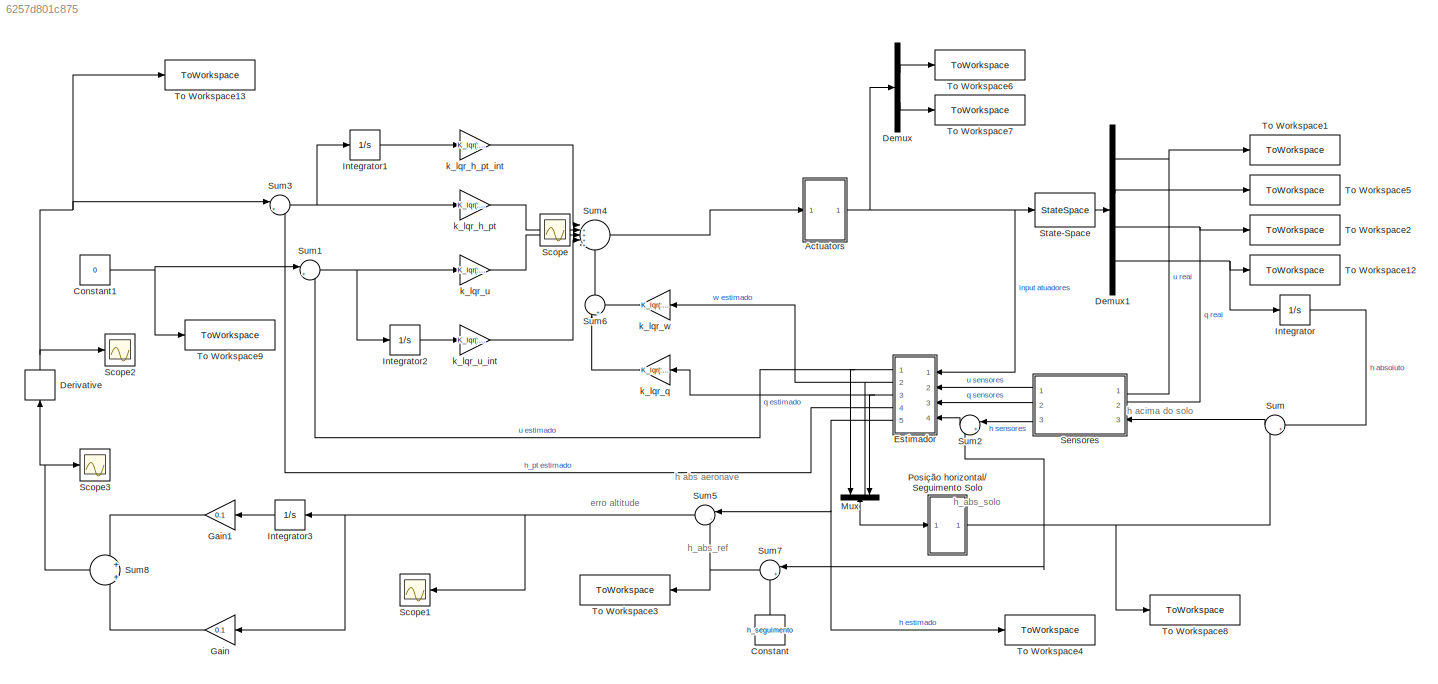
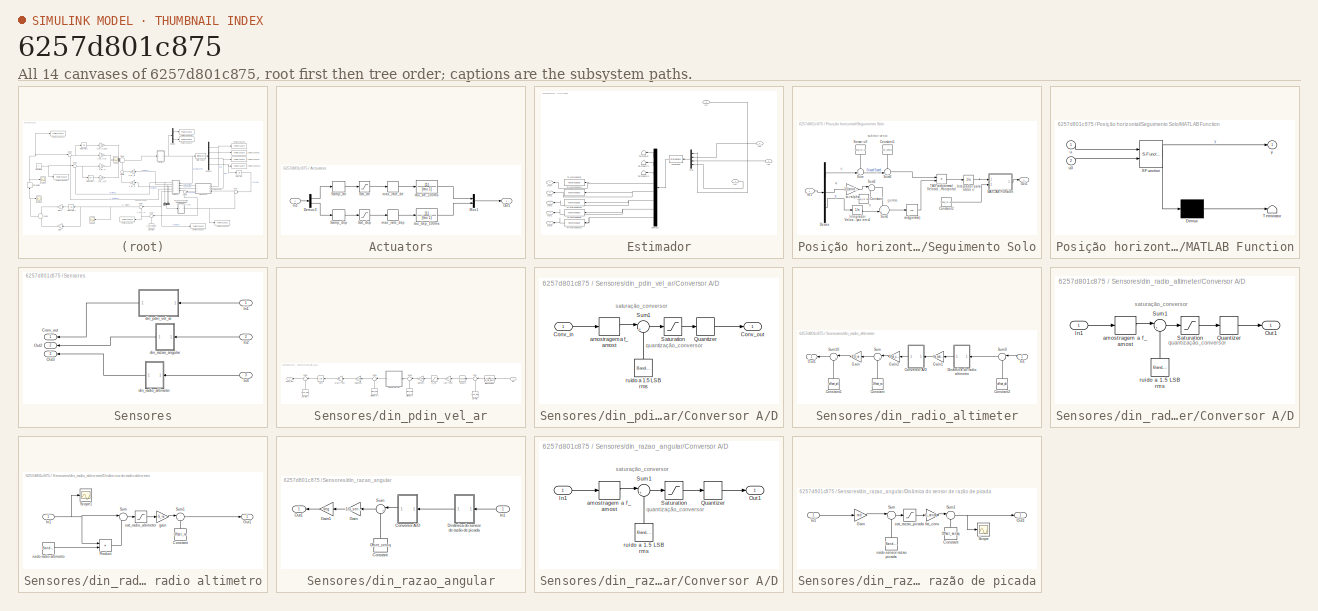
[diagram: thumbnail index - all 14 canvases of the model, root first then tree order]
MODEL slx_6257d801c875
KIND model
CONFIG AbsTol = auto
CONFIG EnableMultiTasking = off
CONFIG FixedStep = auto
CONFIG MaxStep = auto
CONFIG MinStep = auto
CONFIG RelTol = 1e-3
CONFIG SampleTimeConstraint = Unconstrained
CONFIG SolverName = VariableStepAuto
CONFIG StartTime = 0.0
CONFIG StopTime = 100
BLOCK [SubSystem] Actuators
  Ports = [1, 1]
  RequestExecContextInheritance = off
BLOCK [RateLimiter] Actuators/ max_rate_de
  FallingSlewLimit = -vel_max_at*deg
  RisingSlewLimit = vel_max_at*deg
  SampleTimeMode = inherited
BLOCK [RateLimiter] Actuators/ max_rate_dsp
  FallingSlewLimit = -vel_max_at*deg
  RisingSlewLimit = vel_max_at*deg
  SampleTimeMode = inherited
BLOCK [Demux] Actuators/Demux3
  Outputs = 2
  Ports = [1, 2]
BLOCK [Inport] Actuators/In1
BLOCK [Mux] Actuators/Mux1
  DisplayOption = bar
  Inputs = 2
  Ports = [2, 1]
BLOCK [Outport] Actuators/Out1
BLOCK [ZeroOrderHold] Actuators/Samp_de
  SampleTime = 1/f_amost
BLOCK [ZeroOrderHold] Actuators/Samp_dsp
  SampleTime = 1/f_amost
BLOCK [Saturate] Actuators/Sat_de
  LowerLimit = max_deflec.demin
  UpperLimit = max_deflec.demax
BLOCK [Saturate] Actuators/Sat_dsp
  LowerLimit = 0
  UpperLimit = max_deflec.spmax
BLOCK [TransferFcn] Actuators/tau_de_100ms
  Denominator = [tau 1]
BLOCK [TransferFcn] Actuators/tau_dsp_100ms
  Denominator = [tau 1]
BLOCK [Constant] Constant
  NameLocation = right
  Value = h_seguimento
BLOCK [Constant] Constant1
  Value = 0
BLOCK [Demux] Demux
  Outputs = 2
  Ports = [1, 2]
BLOCK [Demux] Demux1
  Ports = [1, 4]
BLOCK [Derivative] Derivative
  NameLocation = right
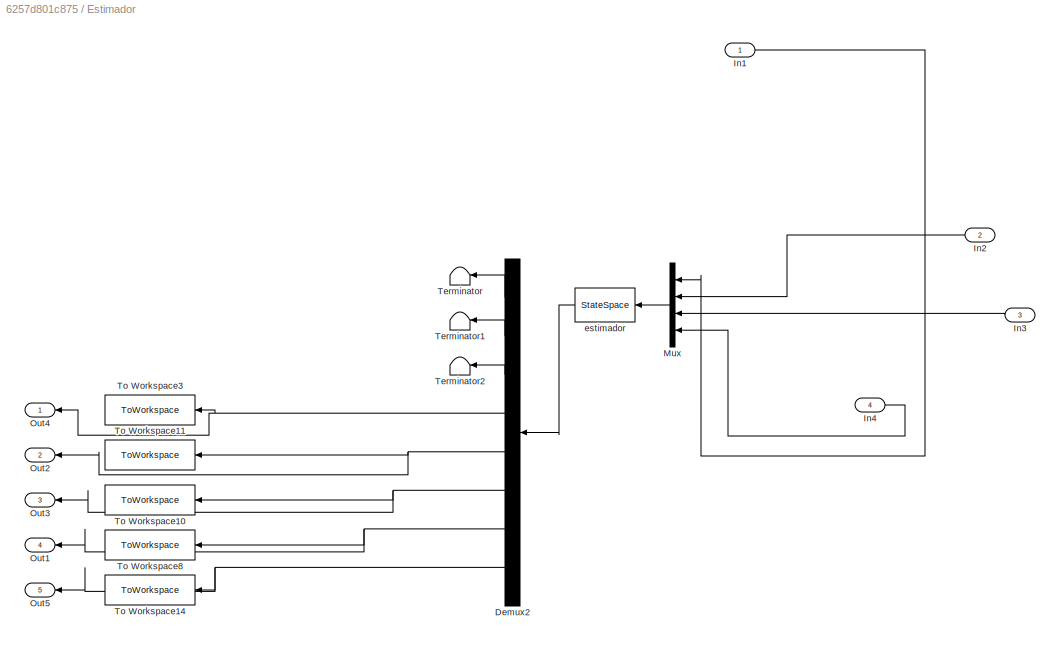
BLOCK [SubSystem] Estimador
  NameLocation = top
  Ports = [4, 5]
  RequestExecContextInheritance = off
BLOCK [Demux] Estimador/Demux2
  NameLocation = top
  Outputs = 8
  Ports = [1, 8]
BLOCK [Inport] Estimador/In1
BLOCK [Inport] Estimador/In2
  Port = 2
BLOCK [Inport] Estimador/In3
  Port = 3
BLOCK [Inport] Estimador/In4
  Port = 4
BLOCK [Mux] Estimador/Mux
  DisplayOption = bar
  NameLocation = top
  Ports = [4, 1]
BLOCK [Outport] Estimador/Out1
  NameLocation = top
  Port = 4
BLOCK [Outport] Estimador/Out2
  Port = 2
BLOCK [Outport] Estimador/Out3
  Port = 3
BLOCK [Outport] Estimador/Out4
  NameLocation = top
BLOCK [Outport] Estimador/Out5
  NameLocation = top
  Port = 5
BLOCK [Terminator] Estimador/Terminator
  NameLocation = top
BLOCK [Terminator] Estimador/Terminator1
  NameLocation = top
BLOCK [Terminator] Estimador/Terminator2
  NameLocation = top
BLOCK [ToWorkspace] Estimador/To Workspace10
  FixptAsFi = on
  MaxDataPoints = inf
  NameLocation = top
  Ports = [1]
  SampleTime = -1
  VariableName = q_e
BLOCK [ToWorkspace] Estimador/To Workspace11
  FixptAsFi = on
  MaxDataPoints = inf
  NameLocation = top
  Ports = [1]
  SampleTime = -1
  VariableName = w_e
BLOCK [ToWorkspace] Estimador/To Workspace14
  FixptAsFi = on
  MaxDataPoints = inf
  NameLocation = top
  Ports = [1]
  SampleTime = -1
  VariableName = h_e
BLOCK [ToWorkspace] Estimador/To Workspace3
  FixptAsFi = on
  MaxDataPoints = inf
  NameLocation = top
  Ports = [1]
  SampleTime = -1
  VariableName = u_e
BLOCK [ToWorkspace] Estimador/To Workspace8
  FixptAsFi = on
  MaxDataPoints = inf
  NameLocation = top
  Ports = [1]
  SampleTime = -1
  VariableName = h_pt_e
BLOCK [StateSpace] Estimador/estimador
  A = ae
  B = be
  C = ce
  D = de
  InitialCondition = x0_e
  NameLocation = top
  Ports = [1, 1]
BLOCK [Gain] Gain
  Gain = 0.1
  NameLocation = top
BLOCK [Gain] Gain1
  Gain = 0.1
  NameLocation = top
BLOCK [Integrator] Integrator
  InitialCondition = cond_ini.h0+h_solo_0
  Ports = [1, 1]
BLOCK [Integrator] Integrator1
  Ports = [1, 1]
BLOCK [Integrator] Integrator2
  Ports = [1, 1]
BLOCK [Integrator] Integrator3
  NameLocation = top
  Ports = [1, 1]
BLOCK [Mux] Mux
  DisplayOption = bar
  Inputs = 3
  NameLocation = left
  Ports = [3, 1]
BLOCK [SubSystem] Posição horizontal//Seguimento Solo
  NameLocation = top
  Ports = [1, 1]
  RequestExecContextInheritance = off
BLOCK [Constant] Posição horizontal//Seguimento Solo/Constant
  Value = cond_ini.aa0
BLOCK [Constant] Posição horizontal//Seguimento Solo/Constant1
  NameLocation = left
  Value = vel_vento
BLOCK [Constant] Posição horizontal//Seguimento Solo/Constant2
  Value = cond_ini.u0
BLOCK [Demux] Posição horizontal//Seguimento Solo/Demux
  Outputs = 3
  Ports = [1, 3]
BLOCK [Inport] Posição horizontal//Seguimento Solo/In1
BLOCK [Integrator] Posição horizontal//Seguimento Solo/Integrador Velocidade para posiçao em x1
  InitialCondition = cond_ini.tt0
  Ports = [1, 1]
BLOCK [Integrator] Posição horizontal//Seguimento Solo/Integrador para obter x
  Ports = [1, 1]
BLOCK [SubSystem] Posição horizontal//Seguimento Solo/MATLAB Function
  ErrorFcn = Stateflow.Translate.translate
  PermitHierarchicalResolution = ExplicitOnly
  Ports = [2, 1]
  RequestExecContextInheritance = off
  SFBlockType = MATLAB Function
  TreatAsAtomicUnit = on
BLOCK [Demux] Posição horizontal//Seguimento Solo/MATLAB Function/ Demux 
  Outputs = 1
  Ports = [1, 1]
BLOCK [S-Function] Posição horizontal//Seguimento Solo/MATLAB Function/ SFunction 
  EnableBusSupport = on
  FunctionName = sf_sfun
  PortCounts = [2 2]
  Ports = [2, 2]
  SFcnIsStateOwnerBlock = off
  SFunctionDeploymentMode = off
  Tag = Stateflow S-Function 2
BLOCK [Terminator] Posição horizontal//Seguimento Solo/MATLAB Function/ Terminator 
BLOCK [Inport] Posição horizontal//Seguimento Solo/MATLAB Function/u
BLOCK [Inport] Posição horizontal//Seguimento Solo/MATLAB Function/u0
  Port = 2
BLOCK [Outport] Posição horizontal//Seguimento Solo/MATLAB Function/y
  VectorParamsAs1DForOutWhenUnconnected = off
BLOCK [Outport] Posição horizontal//Seguimento Solo/Out1
  VectorParamsAs1DForOutWhenUnconnected = off
BLOCK [Constant] Posição horizontal//Seguimento Solo/Somar u0
  NameLocation = left
  Value = cond_ini.u0
BLOCK [Sum] Posição horizontal//Seguimento Solo/Sum
  Inputs = ++|
  Ports = [2, 1]
BLOCK [Sum] Posição horizontal//Seguimento Solo/Sum1
  Inputs = -+|
  Ports = [2, 1]
BLOCK [Sum] Posição horizontal//Seguimento Solo/Sum2
  Inputs = |++
  Ports = [2, 1]
BLOCK [Sum] Posição horizontal//Seguimento Solo/Sum3
  Inputs = -+|
  Ports = [2, 1]
BLOCK [Product] Posição horizontal//Seguimento Solo/TAS*cos(gamma) Velocidade Horizontal
  Ports = [2, 1]
BLOCK [Trigonometry] Posição horizontal//Seguimento Solo/cos(gamma)
  Operator = cos
  Ports = [1, 1]
BLOCK [Gain] Posição horizontal//Seguimento Solo/w->alpha
  Gain = 1/(cond_ini.u0)
BLOCK [Scope] Scope
  Floating = off
  IOType = viewer
  NumInputPorts = 1
  Ports = []
  ScopeSpecificationString = Simulink.scopes.TimeScopeBlockCfg('CurrentConfiguration', extmgr.ConfigurationSet(extmgr.Configuration('Core','General UI',true),extmgr.Configuration('Core','Source UI',true),extmgr.Configuration('Sources','WiredSimulink',true),extmgr.Configuration('Visuals','Time Domain',true,'SerializedDisplays',{struct('MinYLimReal','-38.55863','MaxYLimReal','13.00209','YLabelReal','','MinYLimMag','0.00000','Ma...<+1363ch>
BLOCK [Scope] Scope1
  Floating = off
  NameLocation = top
  NumInputPorts = 1
  Ports = [1]
  ScopeSpecificationString = Simulink.scopes.TimeScopeBlockCfg('CurrentConfiguration', extmgr.ConfigurationSet(extmgr.Configuration('Core','General UI',true),extmgr.Configuration('Core','Source UI',true),extmgr.Configuration('Sources','WiredSimulink',true,'DataLoggingVariableName','ScopeData1'),extmgr.Configuration('Visuals','Time Domain',true,'SerializedDisplays',{struct('MinYLimReal','-67.59765','MaxYLimReal','126.267','YLa...<+1394ch>
BLOCK [Scope] Scope2
  Floating = off
  NumInputPorts = 1
  Ports = [1]
  ScopeSpecificationString = Simulink.scopes.TimeScopeBlockCfg('CurrentConfiguration', extmgr.ConfigurationSet(extmgr.Configuration('Core','General UI',true),extmgr.Configuration('Core','Source UI',true),extmgr.Configuration('Sources','WiredSimulink',true,'DataLoggingVariableName','ScopeData1'),extmgr.Configuration('Visuals','Time Domain',true),extmgr.Configuration('Tools','Plot Navigation',true),extmgr.Configuration('Tools',...<+40ch>
BLOCK [Scope] Scope3
  Floating = off
  NumInputPorts = 1
  Ports = [1]
  ScopeSpecificationString = Simulink.scopes.TimeScopeBlockCfg('CurrentConfiguration', extmgr.ConfigurationSet(extmgr.Configuration('Core','General UI',true),extmgr.Configuration('Core','Source UI',true),extmgr.Configuration('Sources','WiredSimulink',true,'DataLoggingVariableName','ScopeData2'),extmgr.Configuration('Visuals','Time Domain',true),extmgr.Configuration('Tools','Plot Navigation',true),extmgr.Configuration('Tools',...<+40ch>
BLOCK [SubSystem] Sensores
  NameLocation = top
  Ports = [3, 3]
  RequestExecContextInheritance = off
BLOCK [Outport] Sensores/Conv_out
  NameLocation = left
BLOCK [Inport] Sensores/In1
  NameLocation = top
BLOCK [Inport] Sensores/In2
  NameLocation = top
  Port = 2
BLOCK [Inport] Sensores/In3
  NameLocation = top
  Port = 3
BLOCK [Outport] Sensores/Out2
  Port = 2
BLOCK [Outport] Sensores/Out3
  Port = 3
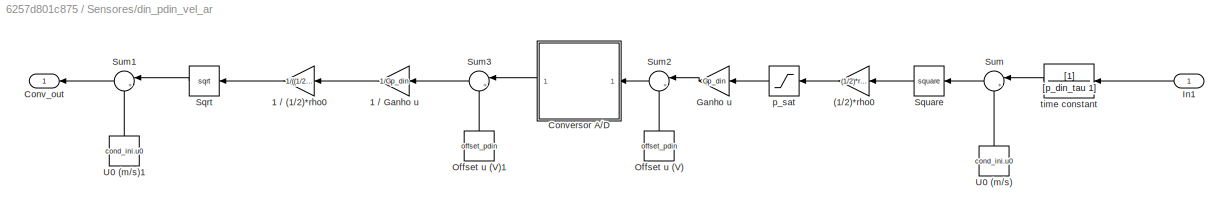
BLOCK [SubSystem] Sensores/din_pdin_vel_ar
  NameLocation = top
  Ports = [1, 1]
  RequestExecContextInheritance = off
BLOCK [TransferFcn] Sensores/din_pdin_vel_ar/ time constant
  Denominator = [p_din_tau 1]
  NameLocation = top
BLOCK [Gain] Sensores/din_pdin_vel_ar/(1//2)*rho0
  Gain = (1/2)*rho0
  NameLocation = top
BLOCK [Gain] Sensores/din_pdin_vel_ar/1 // (1//2)*rho0
  Gain = 1/((1/2)*rho0)
  NameLocation = top
BLOCK [Gain] Sensores/din_pdin_vel_ar/1 // Ganho u
  Gain = 1/Gp_din
  NameLocation = top
BLOCK [Outport] Sensores/din_pdin_vel_ar/Conv_out
  NameLocation = top
BLOCK [SubSystem] Sensores/din_pdin_vel_ar/Conversor A//D
  NameLocation = top
  Ports = [1, 1]
  RequestExecContextInheritance = off
BLOCK [Inport] Sensores/din_pdin_vel_ar/Conversor A//D/Conv_in
BLOCK [Outport] Sensores/din_pdin_vel_ar/Conversor A//D/Conv_out
BLOCK [Quantizer] Sensores/din_pdin_vel_ar/Conversor A//D/Quantizer
  QuantizationInterval = fat_quant
BLOCK [Saturate] Sensores/din_pdin_vel_ar/Conversor A//D/Saturation
  LowerLimit = conv_min
  UpperLimit = conv_max
BLOCK [Sum] Sensores/din_pdin_vel_ar/Conversor A//D/Sum1
  Inputs = |++
  Ports = [2, 1]
BLOCK [ZeroOrderHold] Sensores/din_pdin_vel_ar/Conversor A//D/amostragem a f_amost
  SampleTime = 1/f_amost
BLOCK [Reference] Sensores/din_pdin_vel_ar/Conversor A//D/ruído a 1.5 LSB rms  REF=simulink/Sources/Band-Limited
White Noise
  NameLocation = right
  Ports = [0, 1]
  SourceBlock = simulink/Sources/Band-Limited\nWhite Noise
  SourceProductBaseCode = SL
  SourceType = Band-Limited White Noise.
BLOCK [Gain] Sensores/din_pdin_vel_ar/Ganho u
  Gain = Gp_din
  NameLocation = top
BLOCK [Inport] Sensores/din_pdin_vel_ar/In1
  NameLocation = top
BLOCK [Constant] Sensores/din_pdin_vel_ar/Offset u (V)
  NameLocation = right
  Value = offset_pdin
BLOCK [Constant] Sensores/din_pdin_vel_ar/Offset u (V)1
  NameLocation = right
  Value = offset_pdin
BLOCK [Sqrt] Sensores/din_pdin_vel_ar/Sqrt
  NameLocation = top
BLOCK [Math] Sensores/din_pdin_vel_ar/Square
  NameLocation = top
  Operator = square
  Ports = [1, 1]
  SignedPower = on
BLOCK [Sum] Sensores/din_pdin_vel_ar/Sum
  Inputs = |++
  NameLocation = top
  Ports = [2, 1]
BLOCK [Sum] Sensores/din_pdin_vel_ar/Sum1
  Inputs = |+-
  NameLocation = top
  Ports = [2, 1]
BLOCK [Sum] Sensores/din_pdin_vel_ar/Sum2
  Inputs = |++
  NameLocation = top
  Ports = [2, 1]
BLOCK [Sum] Sensores/din_pdin_vel_ar/Sum3
  Inputs = |+-
  NameLocation = top
  Ports = [2, 1]
BLOCK [Constant] Sensores/din_pdin_vel_ar/U0 (m//s)
  NameLocation = right
  Value = cond_ini.u0
BLOCK [Constant] Sensores/din_pdin_vel_ar/U0 (m//s)1
  NameLocation = right
  Value = cond_ini.u0
BLOCK [Saturate] Sensores/din_pdin_vel_ar/p_sat
  LowerLimit = pdin_min
  NameLocation = top
  UpperLimit = pdin_max
BLOCK [SubSystem] Sensores/din_radio_altimeter
  Ports = [1, 1]
  RequestExecContextInheritance = off
BLOCK [Constant] Sensores/din_radio_altimeter/Constant
  NameLocation = right
  Value = Offset_ra
BLOCK [Constant] Sensores/din_radio_altimeter/Constant1
  NameLocation = right
  Value = offset_alt
BLOCK [Constant] Sensores/din_radio_altimeter/Constant2
  NameLocation = right
  Value = offset_alt
BLOCK [SubSystem] Sensores/din_radio_altimeter/Conversor A//D
  NameLocation = top
  Ports = [1, 1]
  RequestExecContextInheritance = off
BLOCK [Inport] Sensores/din_radio_altimeter/Conversor A//D/In1
BLOCK [Outport] Sensores/din_radio_altimeter/Conversor A//D/Out1
BLOCK [Quantizer] Sensores/din_radio_altimeter/Conversor A//D/Quantizer
  QuantizationInterval = fat_quant
BLOCK [Saturate] Sensores/din_radio_altimeter/Conversor A//D/Saturation
  LowerLimit = conv_min
  UpperLimit = conv_max
BLOCK [Sum] Sensores/din_radio_altimeter/Conversor A//D/Sum1
  Inputs = |++
  Ports = [2, 1]
BLOCK [ZeroOrderHold] Sensores/din_radio_altimeter/Conversor A//D/amostragem a f_amost
  SampleTime = 1/f_amost
BLOCK [Reference] Sensores/din_radio_altimeter/Conversor A//D/ruído a 1.5 LSB rms  REF=simulink/Sources/Band-Limited
White Noise
  NameLocation = right
  Ports = [0, 1]
  SourceBlock = simulink/Sources/Band-Limited\nWhite Noise
  SourceProductBaseCode = SL
  SourceType = Band-Limited White Noise.
BLOCK [SubSystem] Sensores/din_radio_altimeter/Dinâmica do radio altimetro
  Ports = [1, 1]
  RequestExecContextInheritance = off
BLOCK [Constant] Sensores/din_radio_altimeter/Dinâmica do radio altimetro/Constant
  NameLocation = right
  Value = Offset_ra
BLOCK [Inport] Sensores/din_radio_altimeter/Dinâmica do radio altimetro/In1
BLOCK [Outport] Sensores/din_radio_altimeter/Dinâmica do radio altimetro/Out1
BLOCK [Product] Sensores/din_radio_altimeter/Dinâmica do radio altimetro/Product
  Ports = [2, 1]
BLOCK [Scope] Sensores/din_radio_altimeter/Dinâmica do radio altimetro/Scope1
  Floating = off
  NumInputPorts = 1
  Ports = [1]
  ScopeSpecificationString = Simulink.scopes.TimeScopeBlockCfg('CurrentConfiguration', extmgr.ConfigurationSet(extmgr.Configuration('Core','General UI',true),extmgr.Configuration('Core','Source UI',true),extmgr.Configuration('Sources','WiredSimulink',true,'DataLoggingVariableName','ScopeData6'),extmgr.Configuration('Visuals','Time Domain',true,'SerializedDisplays',{struct('MinYLimReal','112.81721','MaxYLimReal','209.79696','Y...<+1376ch>
BLOCK [Sum] Sensores/din_radio_altimeter/Dinâmica do radio altimetro/Sum
  Inputs = |++
  Ports = [2, 1]
BLOCK [Sum] Sensores/din_radio_altimeter/Dinâmica do radio altimetro/Sum1
  Inputs = |++
  Ports = [2, 1]
BLOCK [Gain] Sensores/din_radio_altimeter/Dinâmica do radio altimetro/gain
  Gain = G_ra
BLOCK [Reference] Sensores/din_radio_altimeter/Dinâmica do radio altimetro/ruido radio altimetro  REF=simulink/Sources/Band-Limited
White Noise
  Ports = [0, 1]
  SourceBlock = simulink/Sources/Band-Limited\nWhite Noise
  SourceProductBaseCode = SL
  SourceType = Band-Limited White Noise.
BLOCK [Saturate] Sensores/din_radio_altimeter/Dinâmica do radio altimetro/sat_radio_altimeter
  LowerLimit = h_ra_min
  NameLocation = top
  UpperLimit = h_ra_max
BLOCK [Gain] Sensores/din_radio_altimeter/Gain
  Gain = 1/G_ra
  NameLocation = top
BLOCK [Gain] Sensores/din_radio_altimeter/Gain1
  Gain = fat_conv_ra
  NameLocation = top
BLOCK [Gain] Sensores/din_radio_altimeter/Gain2
  Gain = 1/fat_conv_ra
  NameLocation = top
BLOCK [Inport] Sensores/din_radio_altimeter/In1
  NameLocation = top
BLOCK [Outport] Sensores/din_radio_altimeter/Out1
BLOCK [Sum] Sensores/din_radio_altimeter/Sum
  Inputs = |+-
  NameLocation = top
  Ports = [2, 1]
BLOCK [Sum] Sensores/din_radio_altimeter/Sum10
  Inputs = |+-
  NameLocation = top
  Ports = [2, 1]
BLOCK [Sum] Sensores/din_radio_altimeter/Sum9
  Inputs = |++
  NameLocation = top
  Ports = [2, 1]
BLOCK [SubSystem] Sensores/din_razao_angular
  Ports = [1, 1]
  RequestExecContextInheritance = off
BLOCK [Constant] Sensores/din_razao_angular/Constant
  NameLocation = right
  Value = Offset_sensq
BLOCK [SubSystem] Sensores/din_razao_angular/Conversor A//D
  NameLocation = top
  Ports = [1, 1]
  RequestExecContextInheritance = off
BLOCK [Inport] Sensores/din_razao_angular/Conversor A//D/In1
BLOCK [Outport] Sensores/din_razao_angular/Conversor A//D/Out1
BLOCK [Quantizer] Sensores/din_razao_angular/Conversor A//D/Quantizer
  QuantizationInterval = fat_quant
BLOCK [Saturate] Sensores/din_razao_angular/Conversor A//D/Saturation
  LowerLimit = conv_min
  UpperLimit = conv_max
BLOCK [Sum] Sensores/din_razao_angular/Conversor A//D/Sum1
  Inputs = |++
  Ports = [2, 1]
BLOCK [ZeroOrderHold] Sensores/din_razao_angular/Conversor A//D/amostragem a f_amost
  SampleTime = 1/f_amost
BLOCK [Reference] Sensores/din_razao_angular/Conversor A//D/ruído a 1.5 LSB rms  REF=simulink/Sources/Band-Limited
White Noise
  NameLocation = right
  Ports = [0, 1]
  SourceBlock = simulink/Sources/Band-Limited\nWhite Noise
  SourceProductBaseCode = SL
  SourceType = Band-Limited White Noise.
BLOCK [SubSystem] Sensores/din_razao_angular/Dinâmica do sensor de razão de picada
  Ports = [1, 1]
  RequestExecContextInheritance = off
BLOCK [Constant] Sensores/din_razao_angular/Dinâmica do sensor de razão de picada/Constant
  NameLocation = right
  Value = Offset_sensq
BLOCK [Gain] Sensores/din_razao_angular/Dinâmica do sensor de razão de picada/Gain
  Gain = rad
  NameLocation = top
BLOCK [Inport] Sensores/din_razao_angular/Dinâmica do sensor de razão de picada/In1
BLOCK [Outport] Sensores/din_razao_angular/Dinâmica do sensor de razão de picada/Out1
BLOCK [Scope] Sensores/din_razao_angular/Dinâmica do sensor de razão de picada/Scope
  Floating = off
  NumInputPorts = 1
  Ports = [1]
  ScopeSpecificationString = Simulink.scopes.TimeScopeBlockCfg('CurrentConfiguration', extmgr.ConfigurationSet(extmgr.Configuration('Core','General UI',true),extmgr.Configuration('Core','Source UI',true),extmgr.Configuration('Sources','WiredSimulink',true,'DataLoggingVariableName','ScopeData3'),extmgr.Configuration('Visuals','Time Domain',true),extmgr.Configuration('Tools','Plot Navigation',true),extmgr.Configuration('Tools',...<+40ch>
BLOCK [Sum] Sensores/din_razao_angular/Dinâmica do sensor de razão de picada/Sum
  Inputs = |++
  Ports = [2, 1]
BLOCK [Sum] Sensores/din_razao_angular/Dinâmica do sensor de razão de picada/Sum1
  Inputs = |++
  Ports = [2, 1]
BLOCK [Gain] Sensores/din_razao_angular/Dinâmica do sensor de razão de picada/fat_conv
  Gain = G_sensq
BLOCK [Reference] Sensores/din_razao_angular/Dinâmica do sensor de razão de picada/ruído sensor razao picada  REF=simulink/Sources/Band-Limited
White Noise
  NameLocation = right
  Ports = [0, 1]
  SourceBlock = simulink/Sources/Band-Limited\nWhite Noise
  SourceProductBaseCode = SL
  SourceType = Band-Limited White Noise.
BLOCK [Saturate] Sensores/din_razao_angular/Dinâmica do sensor de razão de picada/sat_razao_picada
  LowerLimit = q_min_sensq
  NameLocation = top
  UpperLimit = q_max_sensq
BLOCK [Gain] Sensores/din_razao_angular/Gain
  Gain = 1/G_sensq
  NameLocation = top
BLOCK [Gain] Sensores/din_razao_angular/Gain1
  Gain = deg
  NameLocation = top
BLOCK [Inport] Sensores/din_razao_angular/In1
  NameLocation = top
BLOCK [Outport] Sensores/din_razao_angular/Out1
BLOCK [Sum] Sensores/din_razao_angular/Sum
  Inputs = |+-
  NameLocation = top
  Ports = [2, 1]
BLOCK [StateSpace] State-Space
  A = a_h_pt
  B = b_h_pt
  C = c_h_pt
  D = d_h_pt
  InitialCondition = x0
  Ports = [1, 1]
BLOCK [Sum] Sum
  Inputs = |+-
  NameLocation = top
  Ports = [2, 1]
BLOCK [Sum] Sum1
  Inputs = |+-
  Ports = [2, 1]
BLOCK [Sum] Sum2
  Inputs = |++
  NameLocation = top
  Ports = [2, 1]
BLOCK [Sum] Sum3
  Inputs = |+-
  Ports = [2, 1]
BLOCK [Sum] Sum4
  Inputs = |++++-
  Ports = [5, 1]
BLOCK [Sum] Sum5
  Inputs = |-+
  NameLocation = top
  Ports = [2, 1]
BLOCK [Sum] Sum6
  Inputs = |++
  NameLocation = right
  Ports = [2, 1]
BLOCK [Sum] Sum7
  Inputs = |++
  NameLocation = top
  Ports = [2, 1]
BLOCK [Sum] Sum8
  Inputs = +|+
  NameLocation = top
  Ports = [2, 1]
BLOCK [ToWorkspace] To Workspace1
  FixptAsFi = on
  MaxDataPoints = inf
  Ports = [1]
  SampleTime = -1
  VariableName = u
BLOCK [ToWorkspace] To Workspace12
  FixptAsFi = on
  MaxDataPoints = inf
  Ports = [1]
  SampleTime = -1
  VariableName = h_pt
BLOCK [ToWorkspace] To Workspace13
  FixptAsFi = on
  MaxDataPoints = inf
  Ports = [1]
  SampleTime = -1
  VariableName = h_pt_ref
BLOCK [ToWorkspace] To Workspace2
  FixptAsFi = on
  MaxDataPoints = inf
  Ports = [1]
  SampleTime = -1
  VariableName = q
BLOCK [ToWorkspace] To Workspace3
  FixptAsFi = on
  MaxDataPoints = inf
  NameLocation = top
  Ports = [1]
  SampleTime = -1
  VariableName = h1
BLOCK [ToWorkspace] To Workspace4
  FixptAsFi = on
  MaxDataPoints = inf
  Ports = [1]
  SampleTime = -1
  VariableName = h
BLOCK [ToWorkspace] To Workspace5
  FixptAsFi = on
  MaxDataPoints = inf
  Ports = [1]
  SampleTime = -1
  VariableName = w
BLOCK [ToWorkspace] To Workspace6
  FixptAsFi = on
  MaxDataPoints = inf
  Ports = [1]
  SampleTime = -1
  SaveFormat = Structure With Time
  VariableName = de
BLOCK [ToWorkspace] To Workspace7
  FixptAsFi = on
  MaxDataPoints = inf
  Ports = [1]
  SampleTime = -1
  SaveFormat = Structure With Time
  VariableName = dsp
BLOCK [ToWorkspace] To Workspace8
  FixptAsFi = on
  MaxDataPoints = inf
  Ports = [1]
  SampleTime = -1
  VariableName = h_solo
BLOCK [ToWorkspace] To Workspace9
  FixptAsFi = on
  MaxDataPoints = inf
  Ports = [1]
  SampleTime = -1
  VariableName = u_ref
BLOCK [Gain] k_lqr_h_pt
  Gain = K_lqr(:,4)
  Multiplication = Matrix(K*u)
BLOCK [Gain] k_lqr_h_pt_int
  Gain = K_lqr(:,6)
  Multiplication = Matrix(K*u)
BLOCK [Gain] k_lqr_q
  Gain = K_lqr(:,3)
  Multiplication = Matrix(K*u)
  NameLocation = top
BLOCK [Gain] k_lqr_u
  Gain = K_lqr(:,1)
  Multiplication = Matrix(K*u)
BLOCK [Gain] k_lqr_u_int
  Gain = K_lqr(:,5)
  Multiplication = Matrix(K*u)
BLOCK [Gain] k_lqr_w
  Gain = K_lqr(:,2)
  Multiplication = Matrix(K*u)
  NameLocation = top
ANNOTATION (root): erro altitude
ANNOTATION (root): h abs aeronave
ANNOTATION (root): h acima do solo
ANNOTATION (root): h_abs_ref
ANNOTATION (root): h_abs_solo
ANNOTATION Posição horizontal//Seguimento Solo: gamma
ANNOTATION Posição horizontal//Seguimento Solo: subtrair vento
ANNOTATION Posição horizontal//Seguimento Solo: tt
ANNOTATION Posição horizontal//Seguimento Solo: u
ANNOTATION Posição horizontal//Seguimento Solo: w
ANNOTATION Sensores/din_pdin_vel_ar/Conversor A//D: quantização_conversor
ANNOTATION Sensores/din_pdin_vel_ar/Conversor A//D: saturação_conversor
ANNOTATION Sensores/din_radio_altimeter/Conversor A//D: quantização_conversor
ANNOTATION Sensores/din_radio_altimeter/Conversor A//D: saturação_conversor
ANNOTATION Sensores/din_razao_angular/Conversor A//D: quantização_conversor
ANNOTATION Sensores/din_razao_angular/Conversor A//D: saturação_conversor
LINE Actuators/ max_rate_de:1 -> Actuators/tau_de_100ms:1
LINE Actuators/ max_rate_dsp:1 -> Actuators/tau_dsp_100ms:1
LINE Actuators/Demux3:1 -> Actuators/Samp_de:1
LINE Actuators/Demux3:2 -> Actuators/Samp_dsp:1
LINE Actuators/In1:1 -> Actuators/Demux3:1
LINE Actuators/Mux1:1 -> Actuators/Out1:1
LINE Actuators/Samp_de:1 -> Actuators/Sat_de:1
LINE Actuators/Samp_dsp:1 -> Actuators/Sat_dsp:1
LINE Actuators/Sat_de:1 -> Actuators/ max_rate_de:1
LINE Actuators/Sat_dsp:1 -> Actuators/ max_rate_dsp:1
LINE Actuators/tau_de_100ms:1 -> Actuators/Mux1:1
LINE Actuators/tau_dsp_100ms:1 -> Actuators/Mux1:2
NET Actuators:1 -> Demux:1, Estimador:1, State-Space:1
NET Constant1:1 -> Sum1:1, To Workspace9:1
LINE Constant:1 -> Sum7:2
NET Demux1:1 -> Sensores:1, To Workspace1:1
LINE Demux1:2 -> To Workspace5:1
NET Demux1:3 -> Sensores:2, To Workspace2:1
NET Demux1:4 -> Integrator:1, To Workspace12:1
LINE Demux:1 -> To Workspace6:1
LINE Demux:2 -> To Workspace7:1
NET Derivative:1 -> Scope2:1, Sum3:1, To Workspace13:1
LINE Estimador/Demux2:1 -> Estimador/Terminator:1
LINE Estimador/Demux2:2 -> Estimador/Terminator1:1
LINE Estimador/Demux2:3 -> Estimador/Terminator2:1
NET Estimador/Demux2:4 -> Estimador/Out4:1, Estimador/To Workspace3:1
NET Estimador/Demux2:5 -> Estimador/Out2:1, Estimador/To Workspace11:1
NET Estimador/Demux2:6 -> Estimador/Out3:1, Estimador/To Workspace10:1
NET Estimador/Demux2:7 -> Estimador/Out1:1, Estimador/To Workspace8:1
NET Estimador/Demux2:8 -> Estimador/Out5:1, Estimador/To Workspace14:1
LINE Estimador/In1:1 -> Estimador/Mux:1
LINE Estimador/In2:1 -> Estimador/Mux:2
LINE Estimador/In3:1 -> Estimador/Mux:3
LINE Estimador/In4:1 -> Estimador/Mux:4
LINE Estimador/Mux:1 -> Estimador/estimador:1
LINE Estimador/estimador:1 -> Estimador/Demux2:1
NET Estimador:1 -> Mux:1, Sum1:2
NET Estimador:2 -> Mux:2, k_lqr_w:1
NET Estimador:3 -> Mux:3, k_lqr_q:1
LINE Estimador:4 -> Sum3:2
NET Estimador:5 -> Sum5:1, To Workspace4:1
LINE Gain1:1 -> Sum8:1
LINE Gain:1 -> Sum8:2
LINE Integrator1:1 -> k_lqr_h_pt_int:1
LINE Integrator2:1 -> k_lqr_u_int:1
LINE Integrator3:1 -> Gain1:1
LINE Integrator:1 -> Sum:1
LINE Mux:1 -> Posição horizontal//Seguimento Solo:1
LINE Posição horizontal//Seguimento Solo/Constant1:1 -> Posição horizontal//Seguimento Solo/Sum3:1
LINE Posição horizontal//Seguimento Solo/Constant2:1 -> Posição horizontal//Seguimento Solo/MATLAB Function:2
LINE Posição horizontal//Seguimento Solo/Constant:1 -> Posição horizontal//Seguimento Solo/Sum2:2
LINE Posição horizontal//Seguimento Solo/Demux:1 -> Posição horizontal//Seguimento Solo/Sum:2
LINE Posição horizontal//Seguimento Solo/Demux:2 -> Posição horizontal//Seguimento Solo/w->alpha:1
LINE Posição horizontal//Seguimento Solo/Demux:3 -> Posição horizontal//Seguimento Solo/Integrador Velocidade para posiçao em x1:1
LINE Posição horizontal//Seguimento Solo/In1:1 -> Posição horizontal//Seguimento Solo/Demux:1
LINE Posição horizontal//Seguimento Solo/Integrador Velocidade para posiçao em x1:1 -> Posição horizontal//Seguimento Solo/Sum1:2
LINE Posição horizontal//Seguimento Solo/Integrador para obter x:1 -> Posição horizontal//Seguimento Solo/MATLAB Function:1
LINE Posição horizontal//Seguimento Solo/MATLAB Function:1 -> Posição horizontal//Seguimento Solo/Out1:1
LINE Posição horizontal//Seguimento Solo/Somar u0:1 -> Posição horizontal//Seguimento Solo/Sum:1
LINE Posição horizontal//Seguimento Solo/Sum1:1 -> Posição horizontal//Seguimento Solo/cos(gamma):1
LINE Posição horizontal//Seguimento Solo/Sum2:1 -> Posição horizontal//Seguimento Solo/Sum1:1
LINE Posição horizontal//Seguimento Solo/Sum3:1 -> Posição horizontal//Seguimento Solo/TAS*cos(gamma) Velocidade Horizontal:1
LINE Posição horizontal//Seguimento Solo/Sum:1 -> Posição horizontal//Seguimento Solo/Sum3:2
LINE Posição horizontal//Seguimento Solo/TAS*cos(gamma) Velocidade Horizontal:1 -> Posição horizontal//Seguimento Solo/Integrador para obter x:1
LINE Posição horizontal//Seguimento Solo/cos(gamma):1 -> Posição horizontal//Seguimento Solo/TAS*cos(gamma) Velocidade Horizontal:2
LINE Posição horizontal//Seguimento Solo/w->alpha:1 -> Posição horizontal//Seguimento Solo/Sum2:1
NET Posição horizontal//Seguimento Solo:1 -> Sum2:2, Sum7:1, Sum:2, To Workspace8:1
LINE Sensores/In1:1 -> Sensores/din_pdin_vel_ar:1
LINE Sensores/In2:1 -> Sensores/din_razao_angular:1
LINE Sensores/In3:1 -> Sensores/din_radio_altimeter:1
LINE Sensores/din_pdin_vel_ar/ time constant:1 -> Sensores/din_pdin_vel_ar/Sum:1
LINE Sensores/din_pdin_vel_ar/(1//2)*rho0:1 -> Sensores/din_pdin_vel_ar/p_sat:1
LINE Sensores/din_pdin_vel_ar/1 // (1//2)*rho0:1 -> Sensores/din_pdin_vel_ar/Sqrt:1
LINE Sensores/din_pdin_vel_ar/1 // Ganho u:1 -> Sensores/din_pdin_vel_ar/1 // (1//2)*rho0:1
LINE Sensores/din_pdin_vel_ar/Conversor A//D/Conv_in:1 -> Sensores/din_pdin_vel_ar/Conversor A//D/amostragem a f_amost:1
LINE Sensores/din_pdin_vel_ar/Conversor A//D/Quantizer:1 -> Sensores/din_pdin_vel_ar/Conversor A//D/Conv_out:1
LINE Sensores/din_pdin_vel_ar/Conversor A//D/Saturation:1 -> Sensores/din_pdin_vel_ar/Conversor A//D/Quantizer:1
LINE Sensores/din_pdin_vel_ar/Conversor A//D/Sum1:1 -> Sensores/din_pdin_vel_ar/Conversor A//D/Saturation:1
LINE Sensores/din_pdin_vel_ar/Conversor A//D/amostragem a f_amost:1 -> Sensores/din_pdin_vel_ar/Conversor A//D/Sum1:1
LINE Sensores/din_pdin_vel_ar/Conversor A//D/ruído a 1.5 LSB rms:1 -> Sensores/din_pdin_vel_ar/Conversor A//D/Sum1:2
LINE Sensores/din_pdin_vel_ar/Conversor A//D:1 -> Sensores/din_pdin_vel_ar/Sum3:1
LINE Sensores/din_pdin_vel_ar/Ganho u:1 -> Sensores/din_pdin_vel_ar/Sum2:1
LINE Sensores/din_pdin_vel_ar/In1:1 -> Sensores/din_pdin_vel_ar/ time constant:1
LINE Sensores/din_pdin_vel_ar/Offset u (V)1:1 -> Sensores/din_pdin_vel_ar/Sum3:2
LINE Sensores/din_pdin_vel_ar/Offset u (V):1 -> Sensores/din_pdin_vel_ar/Sum2:2
LINE Sensores/din_pdin_vel_ar/Sqrt:1 -> Sensores/din_pdin_vel_ar/Sum1:1
LINE Sensores/din_pdin_vel_ar/Square:1 -> Sensores/din_pdin_vel_ar/(1//2)*rho0:1
LINE Sensores/din_pdin_vel_ar/Sum1:1 -> Sensores/din_pdin_vel_ar/Conv_out:1
LINE Sensores/din_pdin_vel_ar/Sum2:1 -> Sensores/din_pdin_vel_ar/Conversor A//D:1
LINE Sensores/din_pdin_vel_ar/Sum3:1 -> Sensores/din_pdin_vel_ar/1 // Ganho u:1
LINE Sensores/din_pdin_vel_ar/Sum:1 -> Sensores/din_pdin_vel_ar/Square:1
LINE Sensores/din_pdin_vel_ar/U0 (m//s)1:1 -> Sensores/din_pdin_vel_ar/Sum1:2
LINE Sensores/din_pdin_vel_ar/U0 (m//s):1 -> Sensores/din_pdin_vel_ar/Sum:2
LINE Sensores/din_pdin_vel_ar/p_sat:1 -> Sensores/din_pdin_vel_ar/Ganho u:1
LINE Sensores/din_pdin_vel_ar:1 -> Sensores/Conv_out:1
LINE Sensores/din_radio_altimeter/Constant1:1 -> Sensores/din_radio_altimeter/Sum10:2
LINE Sensores/din_radio_altimeter/Constant2:1 -> Sensores/din_radio_altimeter/Sum9:2
LINE Sensores/din_radio_altimeter/Constant:1 -> Sensores/din_radio_altimeter/Sum:2
LINE Sensores/din_radio_altimeter/Conversor A//D/In1:1 -> Sensores/din_radio_altimeter/Conversor A//D/amostragem a f_amost:1
LINE Sensores/din_radio_altimeter/Conversor A//D/Quantizer:1 -> Sensores/din_radio_altimeter/Conversor A//D/Out1:1
LINE Sensores/din_radio_altimeter/Conversor A//D/Saturation:1 -> Sensores/din_radio_altimeter/Conversor A//D/Quantizer:1
LINE Sensores/din_radio_altimeter/Conversor A//D/Sum1:1 -> Sensores/din_radio_altimeter/Conversor A//D/Saturation:1
LINE Sensores/din_radio_altimeter/Conversor A//D/amostragem a f_amost:1 -> Sensores/din_radio_altimeter/Conversor A//D/Sum1:1
LINE Sensores/din_radio_altimeter/Conversor A//D/ruído a 1.5 LSB rms:1 -> Sensores/din_radio_altimeter/Conversor A//D/Sum1:2
LINE Sensores/din_radio_altimeter/Conversor A//D:1 -> Sensores/din_radio_altimeter/Gain2:1
LINE Sensores/din_radio_altimeter/Dinâmica do radio altimetro/Constant:1 -> Sensores/din_radio_altimeter/Dinâmica do radio altimetro/Sum1:2
NET Sensores/din_radio_altimeter/Dinâmica do radio altimetro/In1:1 -> Sensores/din_radio_altimeter/Dinâmica do radio altimetro/Product:1, Sensores/din_radio_altimeter/Dinâmica do radio altimetro/Scope1:1, Sensores/din_radio_altimeter/Dinâmica do radio altimetro/Sum:1
LINE Sensores/din_radio_altimeter/Dinâmica do radio altimetro/Product:1 -> Sensores/din_radio_altimeter/Dinâmica do radio altimetro/Sum:2
LINE Sensores/din_radio_altimeter/Dinâmica do radio altimetro/Sum1:1 -> Sensores/din_radio_altimeter/Dinâmica do radio altimetro/Out1:1
LINE Sensores/din_radio_altimeter/Dinâmica do radio altimetro/Sum:1 -> Sensores/din_radio_altimeter/Dinâmica do radio altimetro/sat_radio_altimeter:1
LINE Sensores/din_radio_altimeter/Dinâmica do radio altimetro/gain:1 -> Sensores/din_radio_altimeter/Dinâmica do radio altimetro/Sum1:1
LINE Sensores/din_radio_altimeter/Dinâmica do radio altimetro/ruido radio altimetro:1 -> Sensores/din_radio_altimeter/Dinâmica do radio altimetro/Product:2
LINE Sensores/din_radio_altimeter/Dinâmica do radio altimetro/sat_radio_altimeter:1 -> Sensores/din_radio_altimeter/Dinâmica do radio altimetro/gain:1
LINE Sensores/din_radio_altimeter/Dinâmica do radio altimetro:1 -> Sensores/din_radio_altimeter/Gain1:1
LINE Sensores/din_radio_altimeter/Gain1:1 -> Sensores/din_radio_altimeter/Conversor A//D:1
LINE Sensores/din_radio_altimeter/Gain2:1 -> Sensores/din_radio_altimeter/Sum:1
LINE Sensores/din_radio_altimeter/Gain:1 -> Sensores/din_radio_altimeter/Sum10:1
LINE Sensores/din_radio_altimeter/In1:1 -> Sensores/din_radio_altimeter/Sum9:1
LINE Sensores/din_radio_altimeter/Sum10:1 -> Sensores/din_radio_altimeter/Out1:1
LINE Sensores/din_radio_altimeter/Sum9:1 -> Sensores/din_radio_altimeter/Dinâmica do radio altimetro:1
LINE Sensores/din_radio_altimeter/Sum:1 -> Sensores/din_radio_altimeter/Gain:1
LINE Sensores/din_radio_altimeter:1 -> Sensores/Out3:1
LINE Sensores/din_razao_angular/Constant:1 -> Sensores/din_razao_angular/Sum:2
LINE Sensores/din_razao_angular/Conversor A//D/In1:1 -> Sensores/din_razao_angular/Conversor A//D/amostragem a f_amost:1
LINE Sensores/din_razao_angular/Conversor A//D/Quantizer:1 -> Sensores/din_razao_angular/Conversor A//D/Out1:1
LINE Sensores/din_razao_angular/Conversor A//D/Saturation:1 -> Sensores/din_razao_angular/Conversor A//D/Quantizer:1
LINE Sensores/din_razao_angular/Conversor A//D/Sum1:1 -> Sensores/din_razao_angular/Conversor A//D/Saturation:1
LINE Sensores/din_razao_angular/Conversor A//D/amostragem a f_amost:1 -> Sensores/din_razao_angular/Conversor A//D/Sum1:1
LINE Sensores/din_razao_angular/Conversor A//D/ruído a 1.5 LSB rms:1 -> Sensores/din_razao_angular/Conversor A//D/Sum1:2
LINE Sensores/din_razao_angular/Conversor A//D:1 -> Sensores/din_razao_angular/Sum:1
LINE Sensores/din_razao_angular/Dinâmica do sensor de razão de picada/Constant:1 -> Sensores/din_razao_angular/Dinâmica do sensor de razão de picada/Sum1:2
LINE Sensores/din_razao_angular/Dinâmica do sensor de razão de picada/Gain:1 -> Sensores/din_razao_angular/Dinâmica do sensor de razão de picada/Sum:1
LINE Sensores/din_razao_angular/Dinâmica do sensor de razão de picada/In1:1 -> Sensores/din_razao_angular/Dinâmica do sensor de razão de picada/Gain:1
NET Sensores/din_razao_angular/Dinâmica do sensor de razão de picada/Sum1:1 -> Sensores/din_razao_angular/Dinâmica do sensor de razão de picada/Out1:1, Sensores/din_razao_angular/Dinâmica do sensor de razão de picada/Scope:1
LINE Sensores/din_razao_angular/Dinâmica do sensor de razão de picada/Sum:1 -> Sensores/din_razao_angular/Dinâmica do sensor de razão de picada/sat_razao_picada:1
LINE Sensores/din_razao_angular/Dinâmica do sensor de razão de picada/fat_conv:1 -> Sensores/din_razao_angular/Dinâmica do sensor de razão de picada/Sum1:1
LINE Sensores/din_razao_angular/Dinâmica do sensor de razão de picada/ruído sensor razao picada:1 -> Sensores/din_razao_angular/Dinâmica do sensor de razão de picada/Sum:2
LINE Sensores/din_razao_angular/Dinâmica do sensor de razão de picada/sat_razao_picada:1 -> Sensores/din_razao_angular/Dinâmica do sensor de razão de picada/fat_conv:1
LINE Sensores/din_razao_angular/Dinâmica do sensor de razão de picada:1 -> Sensores/din_razao_angular/Conversor A//D:1
LINE Sensores/din_razao_angular/Gain1:1 -> Sensores/din_razao_angular/Out1:1
LINE Sensores/din_razao_angular/Gain:1 -> Sensores/din_razao_angular/Gain1:1
LINE Sensores/din_razao_angular/In1:1 -> Sensores/din_razao_angular/Dinâmica do sensor de razão de picada:1
LINE Sensores/din_razao_angular/Sum:1 -> Sensores/din_razao_angular/Gain:1
LINE Sensores/din_razao_angular:1 -> Sensores/Out2:1
LINE Sensores:1 -> Estimador:2
LINE Sensores:2 -> Estimador:3
LINE Sensores:3 -> Sum2:1
LINE State-Space:1 -> Demux1:1
NET Sum1:1 -> Integrator2:1, k_lqr_u:1
LINE Sum2:1 -> Estimador:4
NET Sum3:1 -> Integrator1:1, k_lqr_h_pt:1
LINE Sum4:1 -> Actuators:1
NET Sum5:1 -> Gain:1, Integrator3:1, Scope1:1
LINE Sum6:1 -> Sum4:5
NET Sum7:1 -> Sum5:2, To Workspace3:1
NET Sum8:1 -> Derivative:1, Scope3:1
LINE Sum:1 -> Sensores:3
LINE k_lqr_h_pt:1 -> Sum4:2
LINE k_lqr_h_pt_int:1 -> Sum4:1
LINE k_lqr_q:1 -> Sum6:1
LINE k_lqr_u:1 -> Sum4:3
LINE k_lqr_u_int:1 -> Sum4:4
LINE k_lqr_w:1 -> Sum6:2
note: NET lines group one-source signal fan-out (src -> all destinations, sorted); 1:1 wires keep LINE
CHART Posição horizontal//Seguimento Solo/MATLAB Function states=1 transitions=1
  STATE_LABEL 'eML_blk_kernel()'
  STATE_LABEL 'SCRIPT:\nfunction y = fcn(u, u0)\n\nif (u<20*u0)\n   y=(-5/20)*u+5*u0;\n   \nelseif (20*u0<=u) && (u<40*u0)\n   y=0;\n   \nelseif (40*u0<=u) && (u<60*u0)\n   %y=2.5*u0*sin((3.14159265359/(20*u0))*u) +2.5*u0;\n   y=5*u0*sin(((u/(20*u0))-2)*pi/2);\n\nelse\n    \n   y=5*u0;\nend\n\n'
CHART  states=0 transitions=0
